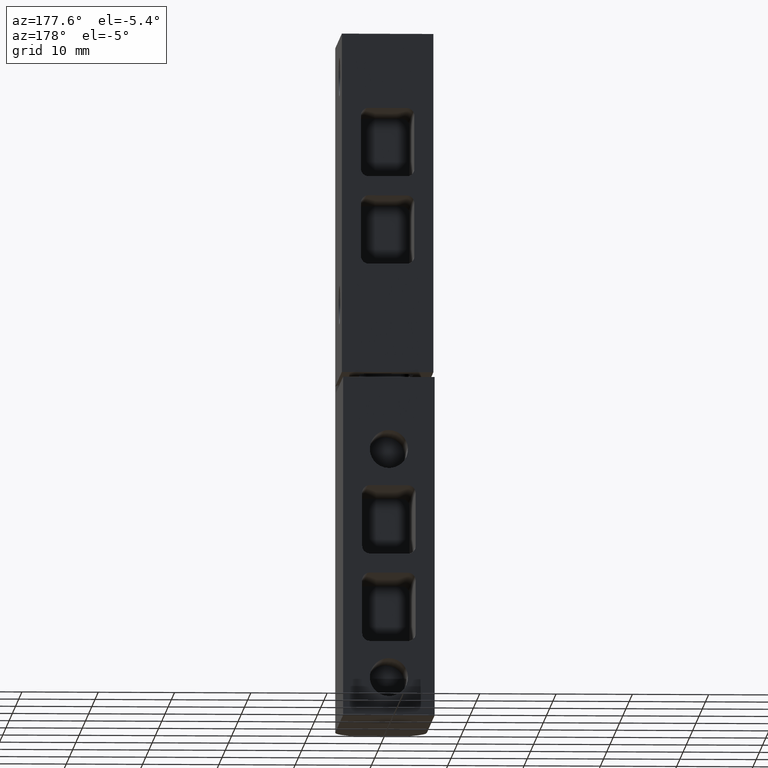
[diagram: clean part render]
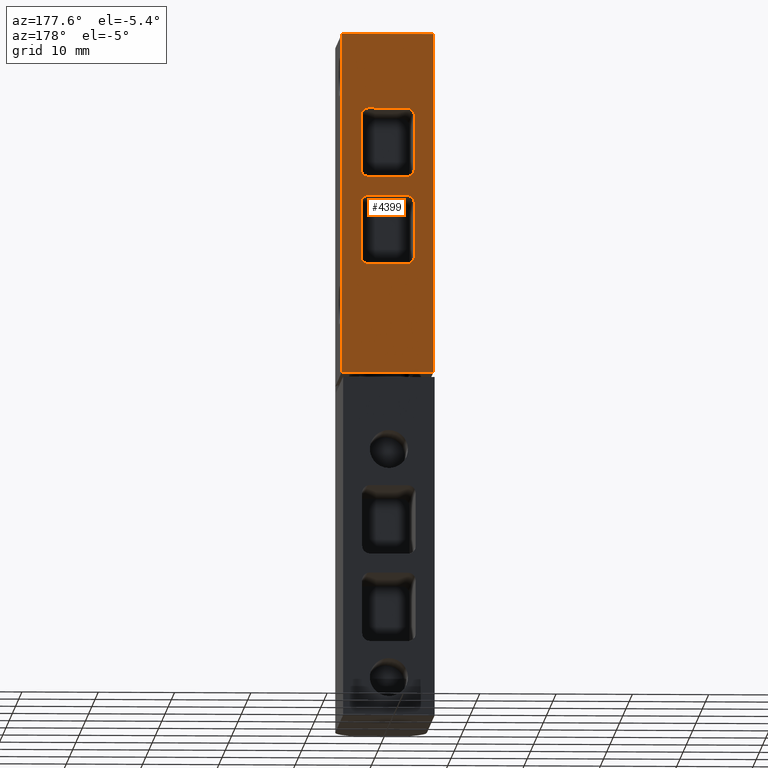
[diagram: same view with one face highlighted and labeled with its STEP entity id]
A machine part, auxiliary view. The second image highlights one B-rep face of the part: STEP entity #4399.
In plain terms, the highlighted face is a freeform B-spline surface patch.
Its self-contained STEP definition (entity closure, byte-faithful):
#3621=CARTESIAN_POINT('',(2.500000166240965,20.500000973677501,80.250003811670709));
#3622=VERTEX_POINT('',#3621);
#3628=CARTESIAN_POINT('',(3.500000166240965,20.500000973677501,79.250003811670709));
#3629=VERTEX_POINT('',#3628);
#3630=CARTESIAN_POINT('',(3.500000166240965,20.500000973677501,79.250003811670709));
#3631=CARTESIAN_POINT('',(3.500000166240965,20.500000973677501,80.250003811670709));
#3632=CARTESIAN_POINT('',(2.500000166240965,20.500000973677501,80.250003811670709));
#3640=(BOUNDED_CURVE()B_SPLINE_CURVE(2,(#3630,#3631,#3632),.UNSPECIFIED.,.F.,.U.)CURVE()GEOMETRIC_REPRESENTATION_ITEM()QUASI_UNIFORM_CURVE()RATIONAL_B_SPLINE_CURVE((1.0,0.707106781186548,1.0))REPRESENTATION_ITEM(''));
#3641=EDGE_CURVE('',#3629,#3622,#3640,.T.);
#3682=CARTESIAN_POINT('',(2.500000166240965,20.500000973677501,68.750003265450104));
#3683=VERTEX_POINT('',#3682);
#3689=CARTESIAN_POINT('',(3.500000166240965,20.500000973677501,67.750003265450104));
#3690=VERTEX_POINT('',#3689);
#3691=CARTESIAN_POINT('',(3.500000166240965,20.500000973677501,67.750003265450104));
#3692=CARTESIAN_POINT('',(3.500000166240965,20.500000973677501,68.750003265450104));
#3693=CARTESIAN_POINT('',(2.500000166240965,20.500000973677501,68.750003265450104));
#3701=(BOUNDED_CURVE()B_SPLINE_CURVE(2,(#3691,#3692,#3693),.UNSPECIFIED.,.F.,.U.)CURVE()GEOMETRIC_REPRESENTATION_ITEM()QUASI_UNIFORM_CURVE()RATIONAL_B_SPLINE_CURVE((1.0,0.707106781186548,1.0))REPRESENTATION_ITEM(''));
#3702=EDGE_CURVE('',#3690,#3683,#3701,.T.);
#3743=CARTESIAN_POINT('',(-3.500000166241135,20.500000973677501,79.250003811670709));
#3744=VERTEX_POINT('',#3743);
#3750=CARTESIAN_POINT('',(-2.500000166241135,20.500000973677501,80.250003811670709));
#3751=VERTEX_POINT('',#3750);
#3752=CARTESIAN_POINT('',(-2.500000166241135,20.500000973677501,80.250003811670709));
#3753=CARTESIAN_POINT('',(-3.500000166241134,20.500000973677501,80.250003811670709));
#3754=CARTESIAN_POINT('',(-3.500000166241135,20.500000973677501,79.250003811670709));
#3762=(BOUNDED_CURVE()B_SPLINE_CURVE(2,(#3752,#3753,#3754),.UNSPECIFIED.,.F.,.U.)CURVE()GEOMETRIC_REPRESENTATION_ITEM()QUASI_UNIFORM_CURVE()RATIONAL_B_SPLINE_CURVE((1.0,0.707106781186548,1.0))REPRESENTATION_ITEM(''));
#3763=EDGE_CURVE('',#3751,#3744,#3762,.T.);
#3804=CARTESIAN_POINT('',(-3.500000166241135,20.500000973677501,67.750003265450104));
#3805=VERTEX_POINT('',#3804);
#3811=CARTESIAN_POINT('',(-2.500000166241135,20.500000973677501,68.750003265450104));
#3812=VERTEX_POINT('',#3811);
#3813=CARTESIAN_POINT('',(-2.500000166241135,20.500000973677501,68.750003265450104));
#3814=CARTESIAN_POINT('',(-3.500000166241134,20.500000973677501,68.750003265450104));
#3815=CARTESIAN_POINT('',(-3.500000166241135,20.500000973677501,67.750003265450104));
#3823=(BOUNDED_CURVE()B_SPLINE_CURVE(2,(#3813,#3814,#3815),.UNSPECIFIED.,.F.,.U.)CURVE()GEOMETRIC_REPRESENTATION_ITEM()QUASI_UNIFORM_CURVE()RATIONAL_B_SPLINE_CURVE((1.0,0.707106781186548,1.0))REPRESENTATION_ITEM(''));
#3824=EDGE_CURVE('',#3812,#3805,#3823,.T.);
#3865=CARTESIAN_POINT('',(-2.500000166241135,20.500000973677501,71.250003384193704));
#3866=VERTEX_POINT('',#3865);
#3872=CARTESIAN_POINT('',(-3.500000166241135,20.500000973677501,72.250003384193704));
#3873=VERTEX_POINT('',#3872);
#3874=CARTESIAN_POINT('',(-3.500000166241135,20.500000973677501,72.250003384193704));
#3875=CARTESIAN_POINT('',(-3.500000166241134,20.500000973677501,71.250003384193704));
#3876=CARTESIAN_POINT('',(-2.500000166241135,20.500000973677501,71.250003384193704));
#3884=(BOUNDED_CURVE()B_SPLINE_CURVE(2,(#3874,#3875,#3876),.UNSPECIFIED.,.F.,.U.)CURVE()GEOMETRIC_REPRESENTATION_ITEM()QUASI_UNIFORM_CURVE()RATIONAL_B_SPLINE_CURVE((1.0,0.707106781186548,1.0))REPRESENTATION_ITEM(''));
#3885=EDGE_CURVE('',#3873,#3866,#3884,.T.);
#3926=CARTESIAN_POINT('',(-2.500000166241135,20.500000973677501,59.750002837973000));
#3927=VERTEX_POINT('',#3926);
#3933=CARTESIAN_POINT('',(-3.500000166241135,20.500000973677501,60.750002837973000));
#3934=VERTEX_POINT('',#3933);
#3935=CARTESIAN_POINT('',(-3.500000166241135,20.500000973677501,60.750002837973000));
#3936=CARTESIAN_POINT('',(-3.500000166241134,20.500000973677501,59.750002837972993));
#3937=CARTESIAN_POINT('',(-2.500000166241135,20.500000973677501,59.750002837973000));
#3945=(BOUNDED_CURVE()B_SPLINE_CURVE(2,(#3935,#3936,#3937),.UNSPECIFIED.,.F.,.U.)CURVE()GEOMETRIC_REPRESENTATION_ITEM()QUASI_UNIFORM_CURVE()RATIONAL_B_SPLINE_CURVE((1.0,0.707106781186548,1.0))REPRESENTATION_ITEM(''));
#3946=EDGE_CURVE('',#3934,#3927,#3945,.T.);
#3987=CARTESIAN_POINT('',(3.500000166240965,20.500000973677501,72.250003384193704));
#3988=VERTEX_POINT('',#3987);
#3994=CARTESIAN_POINT('',(2.500000166240965,20.500000973677501,71.250003384193704));
#3995=VERTEX_POINT('',#3994);
#3996=CARTESIAN_POINT('',(2.500000166240965,20.500000973677501,71.250003384193704));
#3997=CARTESIAN_POINT('',(3.500000166240965,20.500000973677501,71.250003384193704));
#3998=CARTESIAN_POINT('',(3.500000166240965,20.500000973677501,72.250003384193704));
#4006=(BOUNDED_CURVE()B_SPLINE_CURVE(2,(#3996,#3997,#3998),.UNSPECIFIED.,.F.,.U.)CURVE()GEOMETRIC_REPRESENTATION_ITEM()QUASI_UNIFORM_CURVE()RATIONAL_B_SPLINE_CURVE((1.0,0.707106781186548,1.0))REPRESENTATION_ITEM(''));
#4007=EDGE_CURVE('',#3995,#3988,#4006,.T.);
#4048=CARTESIAN_POINT('',(3.500000166240965,20.500000973677501,60.750002837973000));
#4049=VERTEX_POINT('',#4048);
#4055=CARTESIAN_POINT('',(2.500000166240965,20.500000973677501,59.750002837973000));
#4056=VERTEX_POINT('',#4055);
#4057=CARTESIAN_POINT('',(2.500000166240965,20.500000973677501,59.750002837973000));
#4058=CARTESIAN_POINT('',(3.500000166240965,20.500000973677501,59.750002837972993));
#4059=CARTESIAN_POINT('',(3.500000166240965,20.500000973677501,60.750002837973000));
#4067=(BOUNDED_CURVE()B_SPLINE_CURVE(2,(#4057,#4058,#4059),.UNSPECIFIED.,.F.,.U.)CURVE()GEOMETRIC_REPRESENTATION_ITEM()QUASI_UNIFORM_CURVE()RATIONAL_B_SPLINE_CURVE((1.0,0.707106781186548,1.0))REPRESENTATION_ITEM(''));
#4068=EDGE_CURVE('',#4056,#4049,#4067,.T.);
#4115=CARTESIAN_POINT('',(3.500000166240965,20.500000973677501,67.750003265450104));
#4116=CARTESIAN_POINT('',(3.500000166240965,20.500000973677501,60.750002837973000));
#4117=QUASI_UNIFORM_CURVE('',1,(#4115,#4116),.UNSPECIFIED.,.F.,.U.);
#4118=EDGE_CURVE('',#3690,#4049,#4117,.T.);
#4133=CARTESIAN_POINT('',(-2.500000166241135,20.500000973677501,68.750003265450104));
#4134=CARTESIAN_POINT('',(2.500000166240965,20.500000973677501,68.750003265450104));
#4135=QUASI_UNIFORM_CURVE('',1,(#4133,#4134),.UNSPECIFIED.,.F.,.U.);
#4136=EDGE_CURVE('',#3812,#3683,#4135,.T.);
#4149=CARTESIAN_POINT('',(-3.500000166241135,20.500000973677501,60.750002837973000));
#4150=CARTESIAN_POINT('',(-3.500000166241135,20.500000973677501,67.750003265450104));
#4151=QUASI_UNIFORM_CURVE('',1,(#4149,#4150),.UNSPECIFIED.,.F.,.U.);
#4152=EDGE_CURVE('',#3934,#3805,#4151,.T.);
#4165=CARTESIAN_POINT('',(2.500000166240965,20.500000973677501,59.750002837973000));
#4166=CARTESIAN_POINT('',(-2.500000166241135,20.500000973677501,59.750002837973000));
#4167=QUASI_UNIFORM_CURVE('',1,(#4165,#4166),.UNSPECIFIED.,.F.,.U.);
#4168=EDGE_CURVE('',#4056,#3927,#4167,.T.);
#4211=CARTESIAN_POINT('',(3.500000166240965,20.500000973677501,79.250003811670709));
#4212=CARTESIAN_POINT('',(3.500000166240965,20.500000973677501,72.250003384193704));
#4213=QUASI_UNIFORM_CURVE('',1,(#4211,#4212),.UNSPECIFIED.,.F.,.U.);
#4214=EDGE_CURVE('',#3629,#3988,#4213,.T.);
#4229=CARTESIAN_POINT('',(-2.500000166241135,20.500000973677501,80.250003811670709));
#4230=CARTESIAN_POINT('',(2.500000166240965,20.500000973677501,80.250003811670709));
#4231=QUASI_UNIFORM_CURVE('',1,(#4229,#4230),.UNSPECIFIED.,.F.,.U.);
#4232=EDGE_CURVE('',#3751,#3622,#4231,.T.);
#4245=CARTESIAN_POINT('',(-3.500000166241135,20.500000973677501,72.250003384193704));
#4246=CARTESIAN_POINT('',(-3.500000166241135,20.500000973677501,79.250003811670709));
#4247=QUASI_UNIFORM_CURVE('',1,(#4245,#4246),.UNSPECIFIED.,.F.,.U.);
#4248=EDGE_CURVE('',#3873,#3744,#4247,.T.);
#4261=CARTESIAN_POINT('',(2.500000166240965,20.500000973677501,71.250003384193704));
#4262=CARTESIAN_POINT('',(-2.500000166241135,20.500000973677501,71.250003384193704));
#4263=QUASI_UNIFORM_CURVE('',1,(#4261,#4262),.UNSPECIFIED.,.F.,.U.);
#4264=EDGE_CURVE('',#3995,#3866,#4263,.T.);
#4275=CARTESIAN_POINT('',(-6.000000284984790,20.499999810010198,90.000004274770703));
#4276=VERTEX_POINT('',#4275);
#4285=CARTESIAN_POINT('',(6.000000284984610,20.499999810010198,90.000004274770703));
#4286=VERTEX_POINT('',#4285);
#4292=CARTESIAN_POINT('',(-6.000000284984790,20.499999810010198,90.000004274770703));
#4293=CARTESIAN_POINT('',(6.000000284984610,20.499999810010198,90.000004274770703));
#4294=QUASI_UNIFORM_CURVE('',1,(#4292,#4293),.UNSPECIFIED.,.F.,.U.);
#4295=EDGE_CURVE('',#4276,#4286,#4294,.T.);
#4310=CARTESIAN_POINT('',(-6.000000284984790,20.499999810010198,45.500002161134198));
#4311=VERTEX_POINT('',#4310);
#4317=CARTESIAN_POINT('',(6.000000284984610,20.499999810010198,45.500002161134198));
#4318=VERTEX_POINT('',#4317);
#4319=CARTESIAN_POINT('',(-6.000000284984790,20.499999810010198,45.500002161134198));
#4320=CARTESIAN_POINT('',(6.000000284984610,20.499999810010198,45.500002161134198));
#4321=QUASI_UNIFORM_CURVE('',1,(#4319,#4320),.UNSPECIFIED.,.F.,.U.);
#4322=EDGE_CURVE('',#4311,#4318,#4321,.T.);
#4344=CARTESIAN_POINT('',(6.000000284984610,20.499999810010198,45.500002161134198));
#4345=CARTESIAN_POINT('',(6.000000284984610,20.499999810010198,90.000004274770703));
#4346=QUASI_UNIFORM_CURVE('',1,(#4344,#4345),.UNSPECIFIED.,.F.,.U.);
#4347=EDGE_CURVE('',#4318,#4286,#4346,.T.);
#4364=CARTESIAN_POINT('',(-6.599400515491272,20.499999810010198,92.222782894719600));
#4365=CARTESIAN_POINT('',(-6.599400515491271,20.499999810010198,43.277229111239642));
#4366=CARTESIAN_POINT('',(6.599400622779457,20.499999810010198,92.222782894719600));
#4367=CARTESIAN_POINT('',(6.599400622779457,20.499999810010198,43.277229111239642));
#4368=B_SPLINE_SURFACE_WITH_KNOTS('',1,1,((#4364,#4366),(#4365,#4367)),.UNSPECIFIED.,.F.,.F.,.U.,(2,2),(2,2),(0.0,48.945553783479973),(0.0,13.198801138270730),.UNSPECIFIED.);
#4369=ORIENTED_EDGE('',*,*,#4295,.T.);
#4370=ORIENTED_EDGE('',*,*,#4347,.F.);
#4371=ORIENTED_EDGE('',*,*,#4322,.F.);
#4372=CARTESIAN_POINT('',(-6.000000284984790,20.499999810010198,45.500002161134198));
#4373=CARTESIAN_POINT('',(-6.000000284984790,20.499999810010198,90.000004274770703));
#4374=QUASI_UNIFORM_CURVE('',1,(#4372,#4373),.UNSPECIFIED.,.F.,.U.);
#4375=EDGE_CURVE('',#4311,#4276,#4374,.T.);
#4376=ORIENTED_EDGE('',*,*,#4375,.T.);
#4377=EDGE_LOOP('',(#4369,#4370,#4371,#4376));
#4378=FACE_OUTER_BOUND('',#4377,.T.);
#4379=ORIENTED_EDGE('',*,*,#4248,.F.);
#4380=ORIENTED_EDGE('',*,*,#3885,.T.);
#4381=ORIENTED_EDGE('',*,*,#4264,.F.);
#4382=ORIENTED_EDGE('',*,*,#4007,.T.);
#4383=ORIENTED_EDGE('',*,*,#4214,.F.);
#4384=ORIENTED_EDGE('',*,*,#3641,.T.);
#4385=ORIENTED_EDGE('',*,*,#4232,.F.);
#4386=ORIENTED_EDGE('',*,*,#3763,.T.);
#4387=EDGE_LOOP('',(#4379,#4380,#4381,#4382,#4383,#4384,#4385,#4386));
#4388=FACE_BOUND('',#4387,.T.);
#4389=ORIENTED_EDGE('',*,*,#4152,.F.);
#4390=ORIENTED_EDGE('',*,*,#3946,.T.);
#4391=ORIENTED_EDGE('',*,*,#4168,.F.);
#4392=ORIENTED_EDGE('',*,*,#4068,.T.);
#4393=ORIENTED_EDGE('',*,*,#4118,.F.);
#4394=ORIENTED_EDGE('',*,*,#3702,.T.);
#4395=ORIENTED_EDGE('',*,*,#4136,.F.);
#4396=ORIENTED_EDGE('',*,*,#3824,.T.);
#4397=EDGE_LOOP('',(#4389,#4390,#4391,#4392,#4393,#4394,#4395,#4396));
#4398=FACE_BOUND('',#4397,.T.);
#4399=ADVANCED_FACE('',(#4378,#4388,#4398),#4368,.F.);